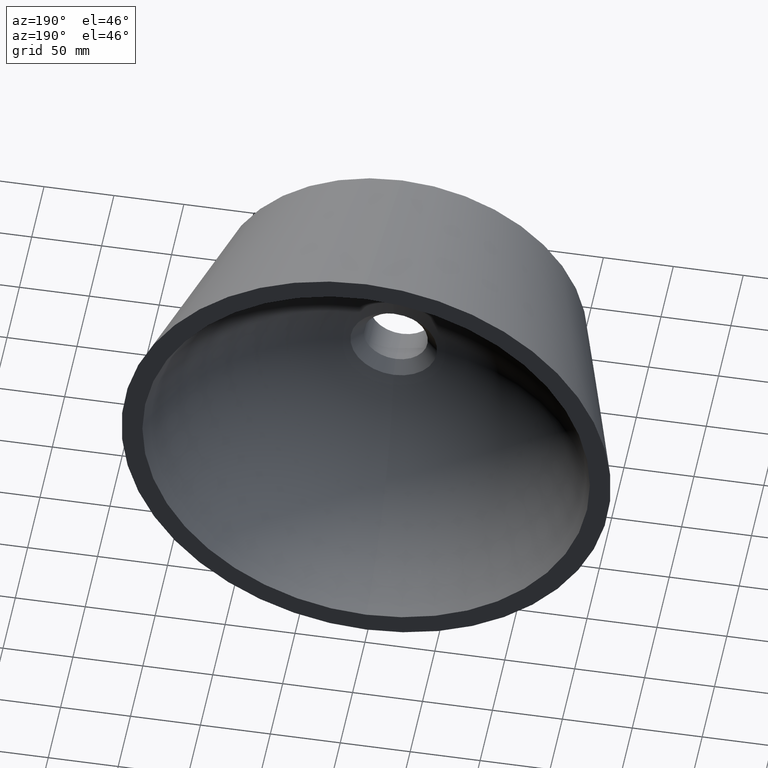
[diagram: clean part render]
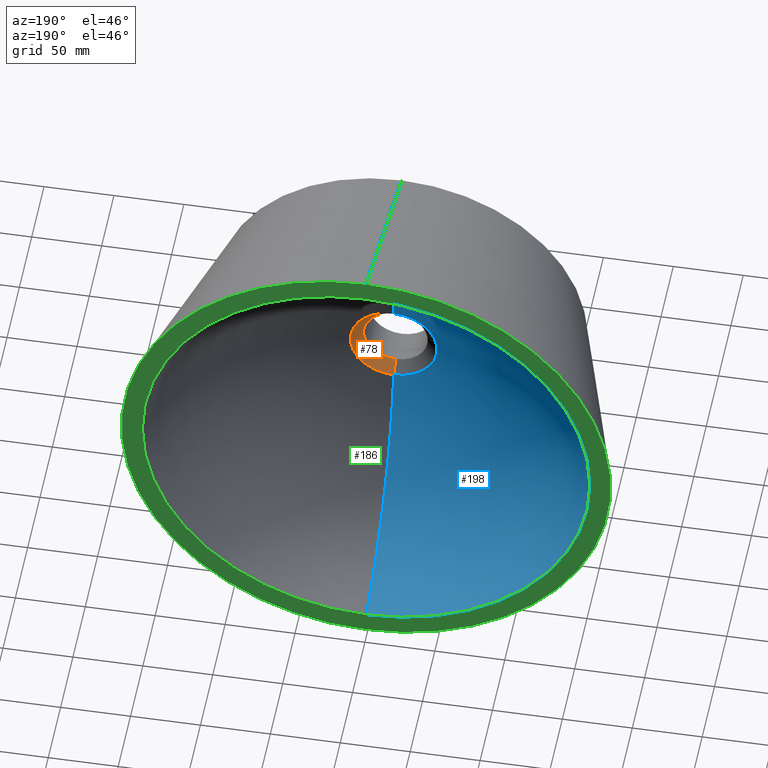
[diagram: same view with three faces highlighted in distinct colors, each labeled with its STEP entity id]
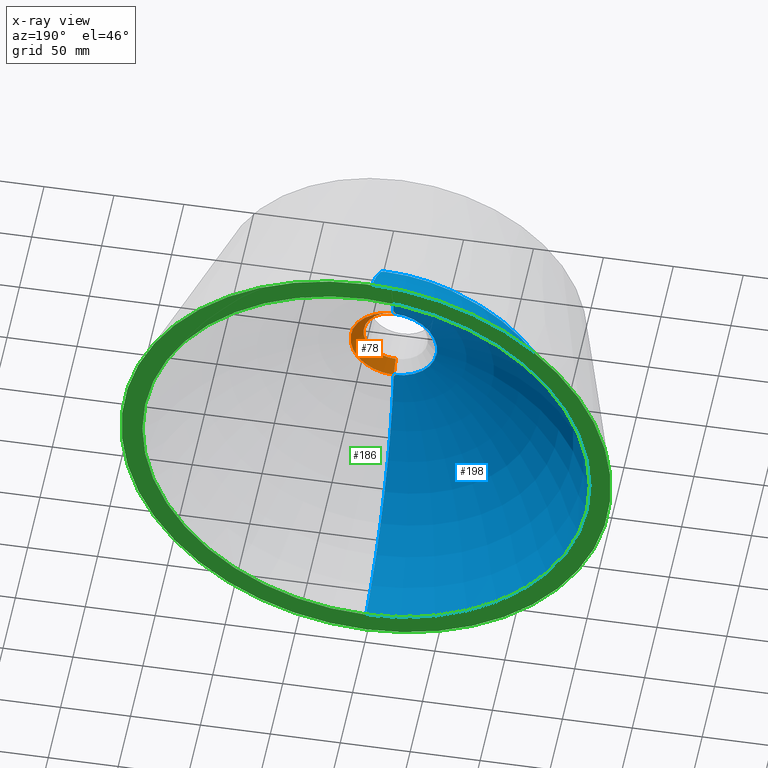
[diagram: x-ray of the same camera — body ghosted, the three highlighted faces saturated]
A machine part, auxiliary view with three faces highlighted in distinct colors.
The next image is the same camera in x-ray (body ghosted, the three faces saturated) — at least one of them is partly hidden behind the body in this view.
Their STEP definitions:

[orange] entity #78 — the highlighted conical surface has half-angle 45 deg.
#3 = CARTESIAN_POINT ( 'NONE',  ( 0.0000000000000000000, 25.00000000000001400, 0.0000000000000000000 ) ) ;
#20 = VERTEX_POINT ( 'NONE', #88 ) ;
#31 = DIRECTION ( 'NONE',  ( 0.0000000000000000000, 0.7071067811865496800, 0.7071067811865453500 ) ) ;
#34 = CARTESIAN_POINT ( 'NONE',  ( 2.816687638038912400E-015, 25.00000000000001400, 23.00000000000000000 ) ) ;
#54 = CARTESIAN_POINT ( 'NONE',  ( 0.0000000000000000000, 33.00000000000006400, 0.0000000000000000000 ) ) ;
#61 = DIRECTION ( 'NONE',  ( 0.0000000000000000000, 0.0000000000000000000, -1.000000000000000000 ) ) ;
#70 = VECTOR ( 'NONE', #31, 1000.000000000000000 ) ;
#78 = ADVANCED_FACE ( 'NONE', ( #281 ), #210, .F. ) ;
#79 = EDGE_CURVE ( 'NONE', #253, #286, #270, .T. ) ;
#83 = LINE ( 'NONE', #134, #242 ) ;
#88 = CARTESIAN_POINT ( 'NONE',  ( 1.169537693185723300E-014, 33.00000000000006400, 31.00000000000000000 ) ) ;
#90 = VERTEX_POINT ( 'NONE', #220 ) ;
#93 = AXIS2_PLACEMENT_3D ( 'NONE', #3, #101, #308 ) ;
#99 = ORIENTED_EDGE ( 'NONE', *, *, #79, .T. ) ;
#101 = DIRECTION ( 'NONE',  ( 0.0000000000000000000, 1.000000000000000000, 0.0000000000000000000 ) ) ;
#107 = ORIENTED_EDGE ( 'NONE', *, *, #120, .F. ) ;
#113 = EDGE_CURVE ( 'NONE', #286, #20, #200, .T. ) ;
#120 = EDGE_CURVE ( 'NONE', #90, #20, #278, .T. ) ;
#134 = CARTESIAN_POINT ( 'NONE',  ( 2.816687638038912400E-015, 25.00000000000001400, -23.00000000000000000 ) ) ;
#151 = AXIS2_PLACEMENT_3D ( 'NONE', #219, #314, #61 ) ;
#153 = DIRECTION ( 'NONE',  ( -0.0000000000000000000, -1.000000000000000000, -0.0000000000000000000 ) ) ;
#156 = EDGE_LOOP ( 'NONE', ( #171, #99, #167, #107 ) ) ;
#163 = CARTESIAN_POINT ( 'NONE',  ( 0.0000000000000000000, 25.00000000000001400, -23.00000000000000000 ) ) ;
#167 = ORIENTED_EDGE ( 'NONE', *, *, #113, .T. ) ;
#171 = ORIENTED_EDGE ( 'NONE', *, *, #251, .F. ) ;
#200 = LINE ( 'NONE', #211, #70 ) ;
#210 = CONICAL_SURFACE ( 'NONE', #93, 23.00000000000000000, 0.7853981633974452800 ) ;
#211 = CARTESIAN_POINT ( 'NONE',  ( 0.0000000000000000000, 25.00000000000001400, 23.00000000000000000 ) ) ;
#219 = CARTESIAN_POINT ( 'NONE',  ( 0.0000000000000000000, 25.00000000000001400, 0.0000000000000000000 ) ) ;
#220 = CARTESIAN_POINT ( 'NONE',  ( 0.0000000000000000000, 33.00000000000006400, -31.00000000000000000 ) ) ;
#227 = DIRECTION ( 'NONE',  ( 8.659560562354907000E-017, 0.7071067811865496800, -0.7071067811865453500 ) ) ;
#242 = VECTOR ( 'NONE', #227, 1000.000000000000000 ) ;
#251 = EDGE_CURVE ( 'NONE', #253, #90, #83, .T. ) ;
#253 = VERTEX_POINT ( 'NONE', #163 ) ;
#264 = AXIS2_PLACEMENT_3D ( 'NONE', #54, #153, #321 ) ;
#270 = CIRCLE ( 'NONE', #151, 23.00000000000000000 ) ;
#278 = CIRCLE ( 'NONE', #264, 31.00000000000000000 ) ;
#281 = FACE_OUTER_BOUND ( 'NONE', #156, .T. ) ;
#286 = VERTEX_POINT ( 'NONE', #34 ) ;
#308 = DIRECTION ( 'NONE',  ( 0.0000000000000000000, 0.0000000000000000000, 1.000000000000000000 ) ) ;
#314 = DIRECTION ( 'NONE',  ( -0.0000000000000000000, -1.000000000000000000, -0.0000000000000000000 ) ) ;
#321 = DIRECTION ( 'NONE',  ( 0.0000000000000000000, 0.0000000000000000000, -1.000000000000000000 ) ) ;

[blue] entity #198 — the highlighted toroidal blend (fillet) surface has major radius 6.8031 mm and minor (blend) radius 160 mm.
#2 = ORIENTED_EDGE ( 'NONE', *, *, #331, .T. ) ;
#16 = DIRECTION ( 'NONE',  ( -0.0000000000000000000, -1.000000000000000000, -0.0000000000000000000 ) ) ;
#20 = VERTEX_POINT ( 'NONE', #88 ) ;
#26 = CARTESIAN_POINT ( 'NONE',  ( 0.0000000000000000000, 33.00000000000006400, 0.0000000000000000000 ) ) ;
#30 = CARTESIAN_POINT ( 'NONE',  ( 0.0000000000000000000, 144.9999999999999700, -160.0000000000000600 ) ) ;
#35 = TOROIDAL_SURFACE ( 'NONE', #126, 6.803146923017686200, 160.0000000000002000 ) ;
#45 = AXIS2_PLACEMENT_3D ( 'NONE', #26, #330, #108 ) ;
#51 = EDGE_LOOP ( 'NONE', ( #80, #173, #2, #327 ) ) ;
#80 = ORIENTED_EDGE ( 'NONE', *, *, #255, .F. ) ;
#85 = DIRECTION ( 'NONE',  ( -1.000000000000000000, 0.0000000000000000000, 0.0000000000000000000 ) ) ;
#87 = EDGE_CURVE ( 'NONE', #98, #90, #190, .T. ) ;
#88 = CARTESIAN_POINT ( 'NONE',  ( 1.169537693185723300E-014, 33.00000000000006400, 31.00000000000000000 ) ) ;
#90 = VERTEX_POINT ( 'NONE', #220 ) ;
#98 = VERTEX_POINT ( 'NONE', #30 ) ;
#100 = AXIS2_PLACEMENT_3D ( 'NONE', #152, #85, #135 ) ;
#108 = DIRECTION ( 'NONE',  ( 0.0000000000000000000, 0.0000000000000000000, -1.000000000000000000 ) ) ;
#110 = CARTESIAN_POINT ( 'NONE',  ( 0.0000000000000000000, 191.1597682761677100, 0.0000000000000000000 ) ) ;
#117 = VERTEX_POINT ( 'NONE', #161 ) ;
#125 = FACE_OUTER_BOUND ( 'NONE', #51, .T. ) ;
#126 = AXIS2_PLACEMENT_3D ( 'NONE', #110, #16, #319 ) ;
#135 = DIRECTION ( 'NONE',  ( 0.0000000000000000000, 0.0000000000000000000, 1.000000000000000000 ) ) ;
#142 = DIRECTION ( 'NONE',  ( -1.224646799147353200E-016, 0.0000000000000000000, -1.000000000000000000 ) ) ;
#150 = CIRCLE ( 'NONE', #300, 160.0000000000002000 ) ;
#152 = CARTESIAN_POINT ( 'NONE',  ( 0.0000000000000000000, 191.1597682761677100, -6.803146923017686200 ) ) ;
#158 = DIRECTION ( 'NONE',  ( -0.0000000000000000000, -1.000000000000000000, -0.0000000000000000000 ) ) ;
#161 = CARTESIAN_POINT ( 'NONE',  ( 1.959434878635766200E-014, 144.9999999999999700, 160.0000000000000600 ) ) ;
#173 = ORIENTED_EDGE ( 'NONE', *, *, #175, .T. ) ;
#175 = EDGE_CURVE ( 'NONE', #117, #20, #150, .T. ) ;
#190 = CIRCLE ( 'NONE', #100, 160.0000000000002000 ) ;
#197 = DIRECTION ( 'NONE',  ( 1.000000000000000000, 0.0000000000000000000, -1.224646799147353200E-016 ) ) ;
#198 = ADVANCED_FACE ( 'NONE', ( #125 ), #35, .F. ) ;
#220 = CARTESIAN_POINT ( 'NONE',  ( 0.0000000000000000000, 33.00000000000006400, -31.00000000000000000 ) ) ;
#222 = CIRCLE ( 'NONE', #45, 31.00000000000000000 ) ;
#228 = CARTESIAN_POINT ( 'NONE',  ( 8.331452103402774300E-016, 191.1597682761677100, 6.803146923017686200 ) ) ;
#245 = DIRECTION ( 'NONE',  ( 0.0000000000000000000, 0.0000000000000000000, -1.000000000000000000 ) ) ;
#255 = EDGE_CURVE ( 'NONE', #117, #98, #301, .T. ) ;
#300 = AXIS2_PLACEMENT_3D ( 'NONE', #228, #197, #142 ) ;
#301 = CIRCLE ( 'NONE', #320, 159.9999999999999700 ) ;
#319 = DIRECTION ( 'NONE',  ( 0.0000000000000000000, 0.0000000000000000000, -1.000000000000000000 ) ) ;
#320 = AXIS2_PLACEMENT_3D ( 'NONE', #325, #158, #245 ) ;
#325 = CARTESIAN_POINT ( 'NONE',  ( 0.0000000000000000000, 144.9999999999999700, 0.0000000000000000000 ) ) ;
#327 = ORIENTED_EDGE ( 'NONE', *, *, #87, .F. ) ;
#330 = DIRECTION ( 'NONE',  ( -0.0000000000000000000, -1.000000000000000000, -0.0000000000000000000 ) ) ;
#331 = EDGE_CURVE ( 'NONE', #20, #90, #222, .T. ) ;

[green] entity #186 — the highlighted planar face has unit normal (0, -1, -0).
#1 = EDGE_LOOP ( 'NONE', ( #250, #229 ) ) ;
#10 = VERTEX_POINT ( 'NONE', #46 ) ;
#18 = AXIS2_PLACEMENT_3D ( 'NONE', #43, #188, #238 ) ;
#24 = CIRCLE ( 'NONE', #68, 175.0000000000000000 ) ;
#30 = CARTESIAN_POINT ( 'NONE',  ( 0.0000000000000000000, 144.9999999999999700, -160.0000000000000600 ) ) ;
#43 = CARTESIAN_POINT ( 'NONE',  ( 0.0000000000000000000, 144.9999999999999700, 0.0000000000000000000 ) ) ;
#46 = CARTESIAN_POINT ( 'NONE',  ( 2.143131898507867900E-014, 144.9999999999999400, -175.0000000000000000 ) ) ;
#48 = DIRECTION ( 'NONE',  ( -0.0000000000000000000, -1.000000000000000000, -0.0000000000000000000 ) ) ;
#68 = AXIS2_PLACEMENT_3D ( 'NONE', #169, #48, #297 ) ;
#98 = VERTEX_POINT ( 'NONE', #30 ) ;
#103 = EDGE_LOOP ( 'NONE', ( #221, #124 ) ) ;
#117 = VERTEX_POINT ( 'NONE', #161 ) ;
#119 = CARTESIAN_POINT ( 'NONE',  ( 0.0000000000000000000, 144.9999999999999400, 175.0000000000000000 ) ) ;
#124 = ORIENTED_EDGE ( 'NONE', *, *, #255, .T. ) ;
#140 = DIRECTION ( 'NONE',  ( 0.0000000000000000000, -1.000000000000000000, -0.0000000000000000000 ) ) ;
#141 = EDGE_CURVE ( 'NONE', #284, #10, #144, .T. ) ;
#144 = CIRCLE ( 'NONE', #218, 175.0000000000000000 ) ;
#155 = AXIS2_PLACEMENT_3D ( 'NONE', #193, #140, #287 ) ;
#158 = DIRECTION ( 'NONE',  ( -0.0000000000000000000, -1.000000000000000000, -0.0000000000000000000 ) ) ;
#161 = CARTESIAN_POINT ( 'NONE',  ( 1.959434878635766200E-014, 144.9999999999999700, 160.0000000000000600 ) ) ;
#169 = CARTESIAN_POINT ( 'NONE',  ( 0.0000000000000000000, 144.9999999999999400, 0.0000000000000000000 ) ) ;
#186 = ADVANCED_FACE ( 'NONE', ( #294, #199 ), #296, .F. ) ;
#188 = DIRECTION ( 'NONE',  ( -0.0000000000000000000, -1.000000000000000000, -0.0000000000000000000 ) ) ;
#193 = CARTESIAN_POINT ( 'NONE',  ( -175.0000000000000000, 144.9999999999999700, 0.0000000000000000000 ) ) ;
#199 = FACE_BOUND ( 'NONE', #103, .T. ) ;
#218 = AXIS2_PLACEMENT_3D ( 'NONE', #260, #235, #304 ) ;
#221 = ORIENTED_EDGE ( 'NONE', *, *, #223, .T. ) ;
#223 = EDGE_CURVE ( 'NONE', #98, #117, #324, .T. ) ;
#229 = ORIENTED_EDGE ( 'NONE', *, *, #328, .F. ) ;
#235 = DIRECTION ( 'NONE',  ( -0.0000000000000000000, -1.000000000000000000, -0.0000000000000000000 ) ) ;
#238 = DIRECTION ( 'NONE',  ( 0.0000000000000000000, 0.0000000000000000000, -1.000000000000000000 ) ) ;
#245 = DIRECTION ( 'NONE',  ( 0.0000000000000000000, 0.0000000000000000000, -1.000000000000000000 ) ) ;
#250 = ORIENTED_EDGE ( 'NONE', *, *, #141, .F. ) ;
#255 = EDGE_CURVE ( 'NONE', #117, #98, #301, .T. ) ;
#260 = CARTESIAN_POINT ( 'NONE',  ( 0.0000000000000000000, 144.9999999999999400, 0.0000000000000000000 ) ) ;
#284 = VERTEX_POINT ( 'NONE', #119 ) ;
#287 = DIRECTION ( 'NONE',  ( 0.0000000000000000000, 0.0000000000000000000, -1.000000000000000000 ) ) ;
#294 = FACE_OUTER_BOUND ( 'NONE', #1, .T. ) ;
#296 = PLANE ( 'NONE',  #155 ) ;
#297 = DIRECTION ( 'NONE',  ( 0.0000000000000000000, 0.0000000000000000000, -1.000000000000000000 ) ) ;
#301 = CIRCLE ( 'NONE', #320, 159.9999999999999700 ) ;
#304 = DIRECTION ( 'NONE',  ( 0.0000000000000000000, 0.0000000000000000000, -1.000000000000000000 ) ) ;
#320 = AXIS2_PLACEMENT_3D ( 'NONE', #325, #158, #245 ) ;
#324 = CIRCLE ( 'NONE', #18, 159.9999999999999700 ) ;
#325 = CARTESIAN_POINT ( 'NONE',  ( 0.0000000000000000000, 144.9999999999999700, 0.0000000000000000000 ) ) ;
#328 = EDGE_CURVE ( 'NONE', #10, #284, #24, .T. ) ;